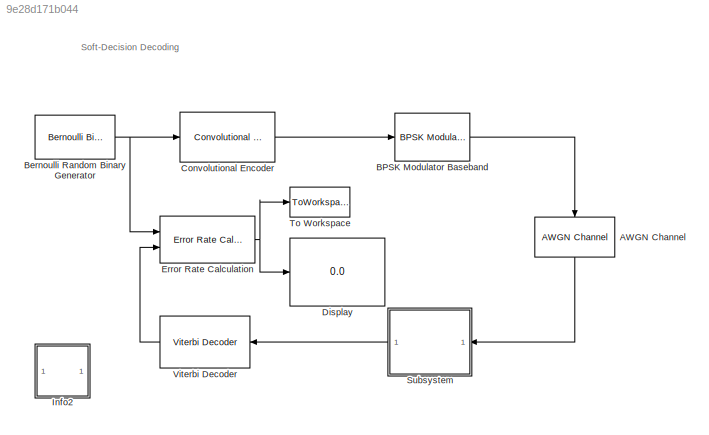
MODEL slx_9e28d171b044
KIND model
CONFIG PreLoadFcn = EbNodB = 2;
BLOCK [Reference] AWGN Channel  REF=commchan3/AWGN
Channel
  EbNodB = 10
  EsNodB = EbNodB+10*log10(1/2)
  InputProcessing = Columns as channels (frame based)
  Ports = [1, 1]
  Ps = 1
  SNRdB = 10
  SourceBlock = commchan3/AWGN\nChannel
  SourceType = AWGN Channel
  Tsym = .5
  UserDataPersistent = on
  bitsPerSym = 1
  noiseMode = Signal to noise ratio  (Es/No)
  seed = 1237
  variance = 1
BLOCK [Reference] BPSK Modulator Baseband  REF=commdigbbndpm3/BPSK
Modulator
Baseband
  Ph = 0
  Ports = [1, 1]
  SourceBlock = commdigbbndpm3/BPSK\nModulator\nBaseband
  SourceType = BPSK Modulator Baseband
  outDtype = double
  outFracLen = 15
  outFracLenMode = Best precision
  outUDDataType = sfix(16)
  outWordLen = 16
BLOCK [Reference] Bernoulli Random Binary Generator  REF=commrandsrc2/Bernoulli Binary
Generator
  P = 0.5
  Ports = [0, 1]
  SourceBlock = commrandsrc2/Bernoulli Binary\nGenerator
  SourceType = Bernoulli Binary Generator
  Ts = 1
  frameBased = on
  orient = off
  outDataType = double
  sampPerFrame = 10000
  seed = 25741
BLOCK [Reference] Convolutional Encoder  REF=commcnvcod2/Convolutional
Encoder
  DelayedResetAction = off
  Ports = [1, 1]
  SourceBlock = commcnvcod2/Convolutional\nEncoder
  SourceType = Convolutional Encoder
  hasFinStPort = off
  hasIniStPort = off
  opMode = Continuous
  punctureVector = [1; 1; 0; 1; 0; 1]
  reset = Unused parameter value
  trellis = poly2trellis(7, [171 133])
  usePuncVector = off
BLOCK [Display] Display
  Decimation = 1
  Ports = [1]
BLOCK [Reference] Error Rate Calculation  REF=commsink2/Error Rate
Calculation
  N = 48
  PMode = Port
  Ports = [2, 1]
  RsMode2 = off
  SourceBlock = commsink2/Error Rate\nCalculation
  SourceType = Error Rate Calculation
  WsName = ErrorVec
  cp_mode = Entire frame
  maxBits = 1e7
  numErr = 100
  st_delay = 0
  stop = on
  subframe = []
BLOCK [SubSystem] Info2
  AncestorBlock = commblksprivate/Info
  OpenFcn = helpview([docroot '/toolbox/comm/comm.map'], 'doc_softdecision')
  Ports = []
  RequestExecContextInheritance = off
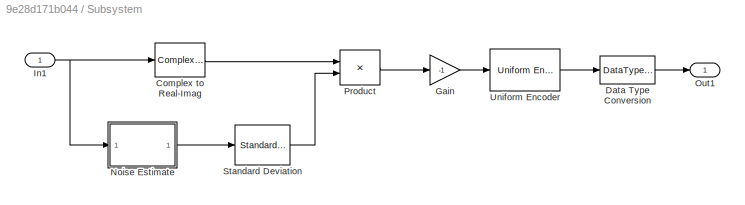
BLOCK [SubSystem] Subsystem
  Ports = [1, 1]
  RequestExecContextInheritance = off
BLOCK [ComplexToRealImag] Subsystem/Complex to Real-Imag
  Output = Real
  Ports = [1, 1]
BLOCK [DataTypeConversion] Subsystem/Data Type Conversion
BLOCK [Gain] Subsystem/Gain
  Gain = -1
BLOCK [Inport] Subsystem/In1
  IconDisplay = Port number
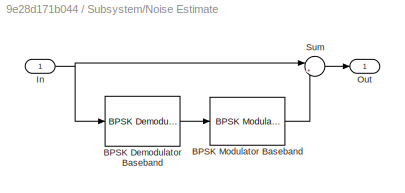
BLOCK [SubSystem] Subsystem/Noise Estimate
  Ports = [1, 1]
  RequestExecContextInheritance = off
BLOCK [Reference] Subsystem/Noise Estimate/BPSK Demodulator Baseband  REF=commdigbbndpm3/BPSK
Demodulator
Baseband
  DecType = Hard decision
  Ph = 0
  Ports = [1, 1]
  SourceBlock = commdigbbndpm3/BPSK\nDemodulator\nBaseband
  SourceType = BPSK Demodulator Baseband
  VarSource = Dialog
  Variance = 1
  derotateFactorDTMode = Same word length as input
  derotateFactorWordLen = 16
  outDtype = Inherit via internal rule
BLOCK [Reference] Subsystem/Noise Estimate/BPSK Modulator Baseband  REF=commdigbbndpm3/BPSK
Modulator
Baseband
  Ph = 0
  Ports = [1, 1]
  SourceBlock = commdigbbndpm3/BPSK\nModulator\nBaseband
  SourceType = BPSK Modulator Baseband
  outDtype = double
  outFracLen = 15
  outFracLenMode = Best precision
  outUDDataType = sfix(16)
  outWordLen = 16
BLOCK [Inport] Subsystem/Noise Estimate/In
  IconDisplay = Port number
BLOCK [Outport] Subsystem/Noise Estimate/Out
  IconDisplay = Port number
BLOCK [Sum] Subsystem/Noise Estimate/Sum
  IconShape = round
  InputSameDT = off
  Inputs = |+-
  OutDataTypeStr = Inherit: Inherit via internal rule
  Ports = [2, 1]
BLOCK [Outport] Subsystem/Out1
  IconDisplay = Port number
BLOCK [Product] Subsystem/Product
  Inputs = */
  Ports = [2, 1]
BLOCK [Reference] Subsystem/Standard Deviation  REF=dspstat3/Standard
Deviation
  InputProcessing = Columns as channels (frame based)
  Ports = [1, 1]
  SourceBlock = dspstat3/Standard\nDeviation
  SourceType = Standard Deviation
  UserDataPersistent = on
  dimension = 1
  directionMode = Each column
  reset_popup = None
  roiEnable = off
  roiFlag = off
  roiOutput = Individual statistics for each ROI
  roiPortion = Entire ROI
  roiType = Rectangles
  run = off
  treatSBRowAsCol = on
BLOCK [Reference] Subsystem/Uniform Encoder  REF=dspquant2/Uniform
Encoder
  Ports = [1, 1]
  SourceBlock = dspquant2/Uniform\nEncoder
  SourceType = Uniform Encoder
  bits = 3
  otype = Unsigned integer
  peak = 1.5
BLOCK [ToWorkspace] To Workspace
  MaxDataPoints = 1
  Ports = [1]
  SampleTime = -1
  VariableName = BER_Data
BLOCK [Reference] Viterbi Decoder  REF=commcnvcod2/Viterbi Decoder
  Ports = [1, 1]
  SourceBlock = commcnvcod2/Viterbi Decoder
  SourceType = Viterbi Decoder
  dectype = Soft decision
  delayedResetAction = off
  erasures = off
  isPunctured = off
  nsdecb = 3
  opmode = Continuous
  outDataType = double
  punctureVector = [1; 1; 0; 1; 0; 1]
  reset = off
  runSigValErrCheck = off
  smWordLength = 16
  tbdepth = 48
  trellis = poly2trellis(7, [171 133])
ANNOTATION (root): Soft-Decision Decoding
LINE AWGN Channel:1 -> Subsystem:1
LINE BPSK Modulator Baseband:1 -> AWGN Channel:1
NET Bernoulli Random Binary Generator:1 -> Convolutional Encoder:1, Error Rate Calculation:1
LINE Convolutional Encoder:1 -> BPSK Modulator Baseband:1
NET Error Rate Calculation:1 -> Display:1, To Workspace:1
LINE Subsystem/Complex to Real-Imag:1 -> Subsystem/Product:1
LINE Subsystem/Data Type Conversion:1 -> Subsystem/Out1:1
LINE Subsystem/Gain:1 -> Subsystem/Uniform Encoder:1
NET Subsystem/In1:1 -> Subsystem/Complex to Real-Imag:1, Subsystem/Noise Estimate:1
LINE Subsystem/Noise Estimate/BPSK Demodulator Baseband:1 -> Subsystem/Noise Estimate/BPSK Modulator Baseband:1
LINE Subsystem/Noise Estimate/BPSK Modulator Baseband:1 -> Subsystem/Noise Estimate/Sum:2
NET Subsystem/Noise Estimate/In:1 -> Subsystem/Noise Estimate/BPSK Demodulator Baseband:1, Subsystem/Noise Estimate/Sum:1
LINE Subsystem/Noise Estimate/Sum:1 -> Subsystem/Noise Estimate/Out:1
LINE Subsystem/Noise Estimate:1 -> Subsystem/Standard Deviation:1
LINE Subsystem/Product:1 -> Subsystem/Gain:1
LINE Subsystem/Standard Deviation:1 -> Subsystem/Product:2
LINE Subsystem/Uniform Encoder:1 -> Subsystem/Data Type Conversion:1
LINE Subsystem:1 -> Viterbi Decoder:1
LINE Viterbi Decoder:1 -> Error Rate Calculation:2
note: NET lines group one-source signal fan-out (src -> all destinations, sorted); 1:1 wires keep LINE
